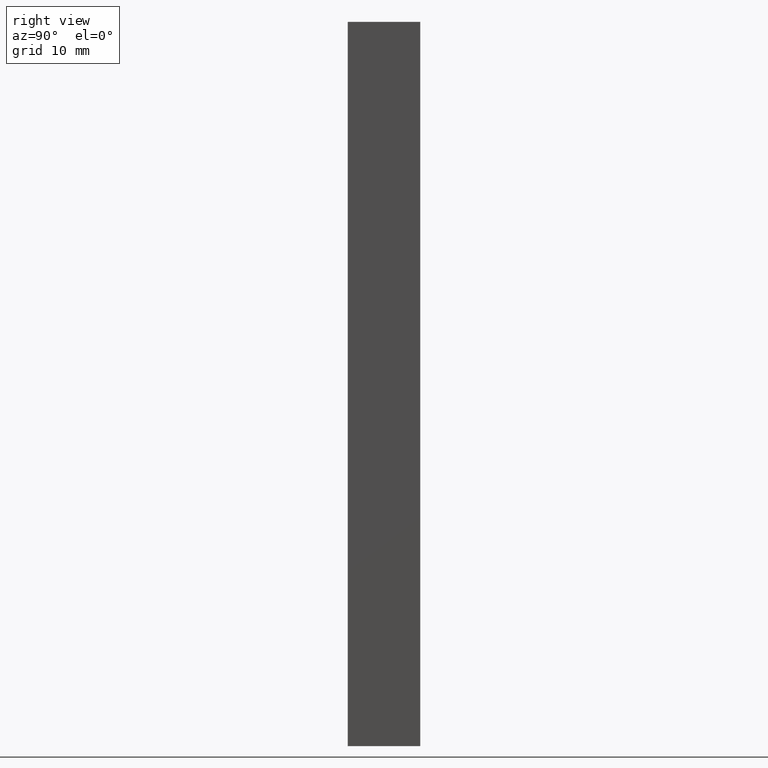
[diagram: clean part render]
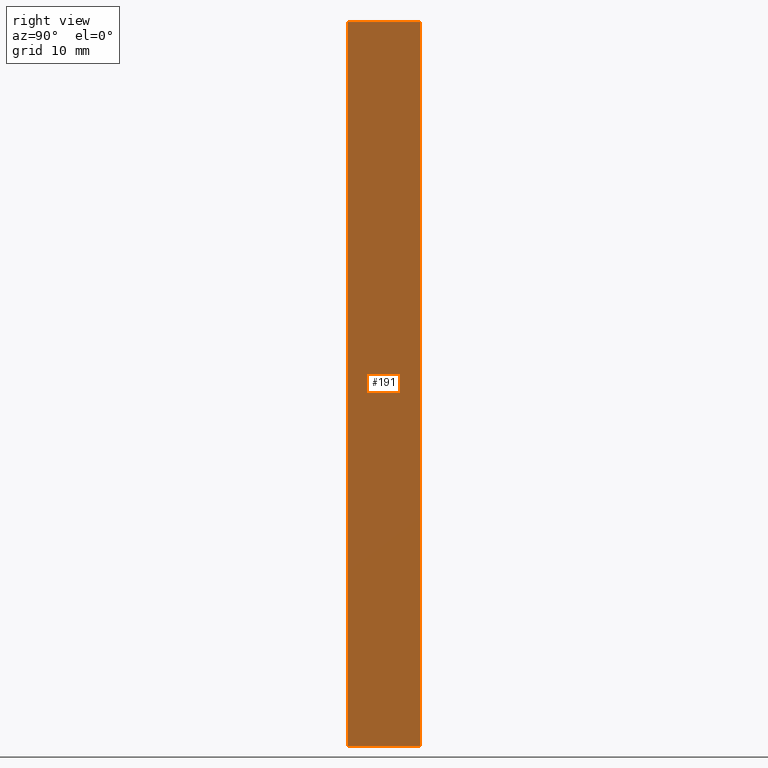
[diagram: same view with one face highlighted and labeled with its STEP entity id]
A machine part, right view. The second image highlights one B-rep face of the part: STEP entity #191.
In plain terms, the highlighted planar face has unit normal (1, 0, 0).
Its self-contained STEP definition (entity closure, byte-faithful):
#23=FACE_OUTER_BOUND('',#33,.T.);
#33=EDGE_LOOP('',(#151,#152,#153,#154));
#57=LINE('',#292,#81);
#58=LINE('',#295,#82);
#59=LINE('',#297,#83);
#60=LINE('',#298,#84);
#81=VECTOR('',#239,100.);
#82=VECTOR('',#242,10.);
#83=VECTOR('',#243,10.);
#84=VECTOR('',#244,100.);
#99=VERTEX_POINT('',#288);
#100=VERTEX_POINT('',#290);
#101=VERTEX_POINT('',#294);
#102=VERTEX_POINT('',#296);
#121=EDGE_CURVE('',#99,#100,#57,.T.);
#122=EDGE_CURVE('',#101,#99,#58,.T.);
#123=EDGE_CURVE('',#102,#100,#59,.T.);
#124=EDGE_CURVE('',#101,#102,#60,.T.);
#151=ORIENTED_EDGE('',*,*,#122,.T.);
#152=ORIENTED_EDGE('',*,*,#121,.T.);
#153=ORIENTED_EDGE('',*,*,#123,.F.);
#154=ORIENTED_EDGE('',*,*,#124,.F.);
#181=PLANE('',#203);
#191=ADVANCED_FACE('',(#23),#181,.T.);
#203=AXIS2_PLACEMENT_3D('',#293,#240,#241);
#239=DIRECTION('',(0.,0.,-1.));
#240=DIRECTION('center_axis',(1.,0.,0.));
#241=DIRECTION('ref_axis',(0.,-1.,0.));
#242=DIRECTION('',(0.,-1.,0.));
#243=DIRECTION('',(0.,-1.,0.));
#244=DIRECTION('',(0.,0.,-1.));
#288=CARTESIAN_POINT('',(38.8330423541557,24.6378745652133,0.));
#290=CARTESIAN_POINT('',(38.8330423541557,24.6378745652133,-100.));
#292=CARTESIAN_POINT('',(38.8330423541557,24.6378745652133,0.));
#293=CARTESIAN_POINT('Origin',(38.8330423541557,34.6378745652133,0.));
#294=CARTESIAN_POINT('',(38.8330423541557,34.6378745652133,0.));
#295=CARTESIAN_POINT('',(38.8330423541557,34.6378745652133,0.));
#296=CARTESIAN_POINT('',(38.8330423541557,34.6378745652133,-100.));
#297=CARTESIAN_POINT('',(38.8330423541557,34.6378745652133,-100.));
#298=CARTESIAN_POINT('',(38.8330423541557,34.6378745652133,0.));